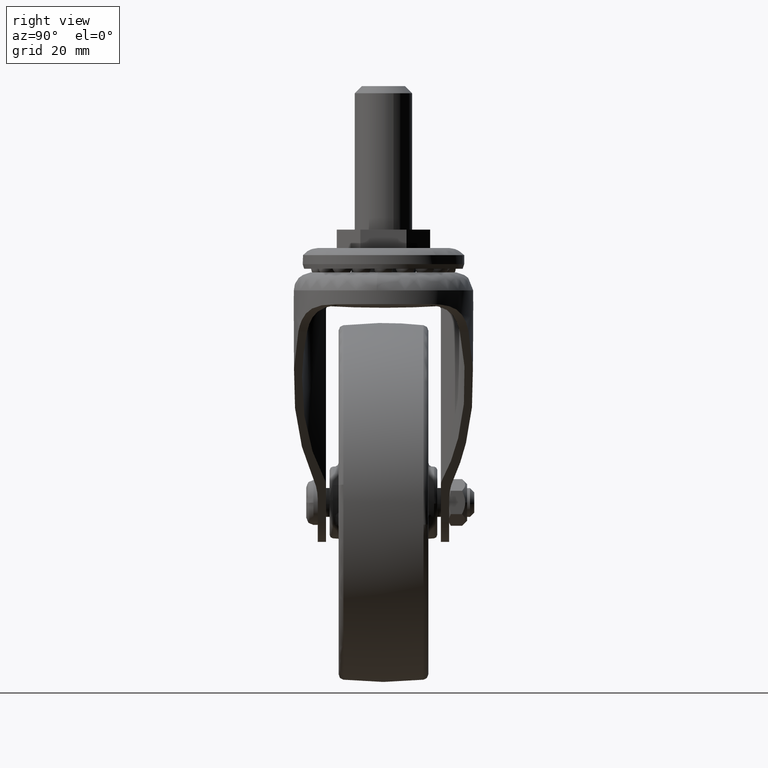
[diagram: clean part render]
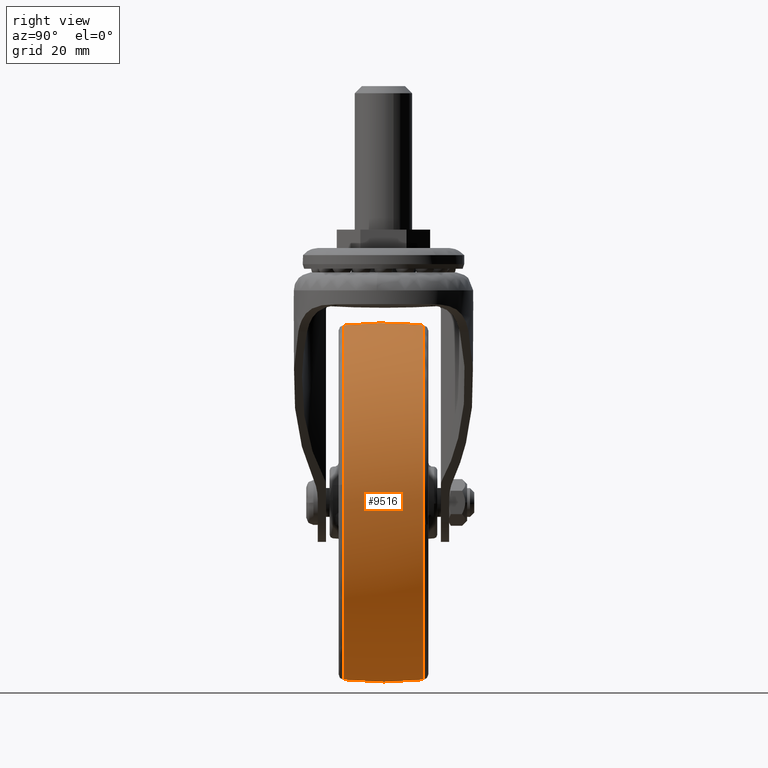
[diagram: same view with one face highlighted and labeled with its STEP entity id]
A machine part, right view. The second image highlights one B-rep face of the part: STEP entity #9516.
In plain terms, the highlighted face is a freeform B-spline surface patch.
Its self-contained STEP definition (entity closure, byte-faithful):
#8456=CARTESIAN_POINT('',(13.453441770170880,-11.167512577570230,-47.506233974520903));
#8457=VERTEX_POINT('',#8456);
#8471=CARTESIAN_POINT('',(49.125185510513532,-11.167506534377891,4.955323121741722));
#8472=VERTEX_POINT('',#8471);
#8473=CARTESIAN_POINT('',(13.453441770170881,-11.167512577570232,-47.506233974520889));
#8474=CARTESIAN_POINT('',(49.374476883661409,-11.167511493247053,-37.333645757907881));
#8475=CARTESIAN_POINT('',(49.374476883661387,-11.167507169380171,0.000016642621604));
#8476=CARTESIAN_POINT('',(49.374476883661394,-11.167506881699939,2.483940552892697));
#8477=CARTESIAN_POINT('',(49.125185510513532,-11.167506534377893,4.955323121741723));
#8485=(BOUNDED_CURVE()B_SPLINE_CURVE(2,(#8473,#8474,#8475,#8476,#8477),.UNSPECIFIED.,.F.,.U.)B_SPLINE_CURVE_WITH_KNOTS((3,2,3),(0.046426116434851,0.250000000000000,0.267423438658967),.UNSPECIFIED.)CURVE()GEOMETRIC_REPRESENTATION_ITEM()RATIONAL_B_SPLINE_CURVE((0.911418360696370,0.761498359904994,1.0,0.979587171873506,0.962019637016756))REPRESENTATION_ITEM(''));
#8486=EDGE_CURVE('',#8457,#8472,#8485,.T.);
#8585=CARTESIAN_POINT('',(0.0,-11.167501450984091,49.374494168904697));
#8586=VERTEX_POINT('',#8585);
#8587=CARTESIAN_POINT('',(49.125185510513532,-11.167506534377891,4.955323121741722));
#8588=CARTESIAN_POINT('',(44.644580076545218,-11.167501450984096,49.374494168904711));
#8589=CARTESIAN_POINT('',(0.0,-11.167501450984091,49.374494168904697));
#8597=(BOUNDED_CURVE()B_SPLINE_CURVE(2,(#8587,#8588,#8589),.UNSPECIFIED.,.F.,.U.)B_SPLINE_CURVE_WITH_KNOTS((3,3),(0.267423438658967,0.500000000000000),.UNSPECIFIED.)CURVE()GEOMETRIC_REPRESENTATION_ITEM()RATIONAL_B_SPLINE_CURVE((0.962019637016756,0.727519609313041,1.0))REPRESENTATION_ITEM(''));
#8598=EDGE_CURVE('',#8472,#8586,#8597,.T.);
#8600=CARTESIAN_POINT('',(-49.044247251732713,-11.167514821191080,5.700959570039594));
#8601=VERTEX_POINT('',#8600);
#8615=CARTESIAN_POINT('',(0.0,-11.167512887776240,-49.374460883661492));
#8616=VERTEX_POINT('',#8615);
#8617=CARTESIAN_POINT('',(-49.044247251732713,-11.167514821191080,5.700959570039594));
#8618=CARTESIAN_POINT('',(-49.374476673389537,-11.167514771326257,2.860052107993396));
#8619=CARTESIAN_POINT('',(-49.374476679640807,-11.167514715329339,0.000015976284381));
#8620=CARTESIAN_POINT('',(-49.374476787560099,-11.167513748621921,-49.374460894832396));
#8621=CARTESIAN_POINT('',(0.0,-11.167512887776240,-49.374460883661492));
#8629=(BOUNDED_CURVE()B_SPLINE_CURVE(2,(#8617,#8618,#8619,#8620,#8621),.UNSPECIFIED.,.F.,.U.)B_SPLINE_CURVE_WITH_KNOTS((3,2,3),(0.730000145986059,0.750000000000000,1.0),.UNSPECIFIED.)CURVE()GEOMETRIC_REPRESENTATION_ITEM()RATIONAL_B_SPLINE_CURVE((0.956886405526814,0.976568713528230,1.0,0.707106781186548,1.0))REPRESENTATION_ITEM(''));
#8630=EDGE_CURVE('',#8601,#8616,#8629,.T.);
#8632=CARTESIAN_POINT('',(0.0,-11.167512887776240,-49.374460883661492));
#8633=CARTESIAN_POINT('',(6.856437568477045,-11.167512887776239,-49.374460883661492));
#8634=CARTESIAN_POINT('',(13.453441770170878,-11.167512577570230,-47.506233974520896));
#8642=(BOUNDED_CURVE()B_SPLINE_CURVE(2,(#8632,#8633,#8634),.UNSPECIFIED.,.F.,.U.)B_SPLINE_CURVE_WITH_KNOTS((3,3),(0.0,0.046426116434851),.UNSPECIFIED.)CURVE()GEOMETRIC_REPRESENTATION_ITEM()RATIONAL_B_SPLINE_CURVE((1.0,0.945608421281553,0.911418360696371))REPRESENTATION_ITEM(''));
#8643=EDGE_CURVE('',#8616,#8457,#8642,.T.);
#8672=CARTESIAN_POINT('',(48.985143232747767,11.167500819042701,-6.188246697697730));
#8673=VERTEX_POINT('',#8672);
#8674=CARTESIAN_POINT('',(0.0,11.167485628169199,49.374495070906320));
#8675=VERTEX_POINT('',#8674);
#8676=CARTESIAN_POINT('',(48.985143232747767,11.167500819042704,-6.188246697697730));
#8677=CARTESIAN_POINT('',(49.374475177890098,11.167499895635391,-3.106361700510835));
#8678=CARTESIAN_POINT('',(49.374475177890098,11.167499051133809,0.000017946508065));
#8679=CARTESIAN_POINT('',(49.374475177890091,11.167485628169201,49.374495070906306));
#8680=CARTESIAN_POINT('',(0.0,11.167485628169199,49.374495070906320));
#8688=(BOUNDED_CURVE()B_SPLINE_CURVE(2,(#8676,#8677,#8678,#8679,#8680),.UNSPECIFIED.,.F.,.U.)B_SPLINE_CURVE_WITH_KNOTS((3,2,3),(0.228321250714427,0.250000000000000,0.500000000000000),.UNSPECIFIED.)CURVE()GEOMETRIC_REPRESENTATION_ITEM()RATIONAL_B_SPLINE_CURVE((0.953608346422326,0.974601765367595,1.0,0.707106781186547,1.0))REPRESENTATION_ITEM(''));
#8689=EDGE_CURVE('',#8673,#8675,#8688,.T.);
#8792=CARTESIAN_POINT('',(0.0,11.167512474098420,-49.374459177890202));
#8793=VERTEX_POINT('',#8792);
#8794=CARTESIAN_POINT('',(0.0,11.167512474098420,-49.374459177890202));
#8795=CARTESIAN_POINT('',(43.529453803987089,11.167512474098420,-49.374459177890195));
#8796=CARTESIAN_POINT('',(48.985143232747774,11.167500819042704,-6.188246697697731));
#8804=(BOUNDED_CURVE()B_SPLINE_CURVE(2,(#8794,#8795,#8796),.UNSPECIFIED.,.F.,.U.)B_SPLINE_CURVE_WITH_KNOTS((3,3),(0.0,0.228321250714427),.UNSPECIFIED.)CURVE()GEOMETRIC_REPRESENTATION_ITEM()RATIONAL_B_SPLINE_CURVE((1.0,0.732505015818953,0.953608346422326))REPRESENTATION_ITEM(''));
#8805=EDGE_CURVE('',#8793,#8673,#8804,.T.);
#8807=CARTESIAN_POINT('',(-49.044248125281300,11.167499099310250,5.700959768865777));
#8808=VERTEX_POINT('',#8807);
#8809=CARTESIAN_POINT('',(-49.044248125281300,11.167499099310259,5.700959768865777));
#8810=CARTESIAN_POINT('',(-49.374477480170178,11.167499444260280,2.860052349725892));
#8811=CARTESIAN_POINT('',(-49.374477411724662,11.167499831630240,0.000016259662657));
#8812=CARTESIAN_POINT('',(-49.374476230109494,11.167506519024325,-49.374459055579351));
#8813=CARTESIAN_POINT('',(0.0,11.167512474098420,-49.374459177890202));
#8821=(BOUNDED_CURVE()B_SPLINE_CURVE(2,(#8809,#8810,#8811,#8812,#8813),.UNSPECIFIED.,.F.,.U.)B_SPLINE_CURVE_WITH_KNOTS((3,2,3),(0.730000145654996,0.750000000000000,1.0),.UNSPECIFIED.)CURVE()GEOMETRIC_REPRESENTATION_ITEM()RATIONAL_B_SPLINE_CURVE((0.956886404875201,0.976568713140366,1.0,0.707106781186547,1.0))REPRESENTATION_ITEM(''));
#8822=EDGE_CURVE('',#8808,#8793,#8821,.T.);
#9424=CARTESIAN_POINT('',(-48.912141797698162,-12.293386680871293,5.685645083880570));
#9425=CARTESIAN_POINT('',(-49.665582081654208,-6.170093837611956,5.773226241318850));
#9426=CARTESIAN_POINT('',(-49.665582081654193,0.0,5.773226241318849));
#9427=CARTESIAN_POINT('',(-49.665582081654186,6.170090758022482,5.773226241318846));
#9428=CARTESIAN_POINT('',(-48.912142546953007,12.293380591592436,5.685645170975202));
#9429=CARTESIAN_POINT('',(-49.241486505969760,-12.293386680871292,2.852369322545358));
#9430=CARTESIAN_POINT('',(-49.999999999999993,-6.170093837611954,2.896306836182978));
#9431=CARTESIAN_POINT('',(-50.0,0.0,2.896306836182978));
#9432=CARTESIAN_POINT('',(-50.0,6.170090758022481,2.896306836182979));
#9433=CARTESIAN_POINT('',(-49.241487260269615,12.293380591592436,2.852369366238793));
#9434=CARTESIAN_POINT('',(-49.241486505969753,-12.293386680871301,0.000015999999901));
#9435=CARTESIAN_POINT('',(-50.000000000000007,-6.170093837611955,0.000015999999901));
#9436=CARTESIAN_POINT('',(-50.0,0.0,0.000015999999901));
#9437=CARTESIAN_POINT('',(-50.0,6.170090758022482,0.000015999999901));
#9438=CARTESIAN_POINT('',(-49.241487260269629,12.293380591592440,0.000015999999901));
#9439=CARTESIAN_POINT('',(-49.241486505969753,-12.293386680871295,-49.241470505969865));
#9440=CARTESIAN_POINT('',(-49.999999999999993,-6.170093837611955,-49.999984000000111));
#9441=CARTESIAN_POINT('',(-50.0,0.0,-49.999984000000111));
#9442=CARTESIAN_POINT('',(-50.000000000000014,6.170090758022482,-49.999984000000111));
#9443=CARTESIAN_POINT('',(-49.241487260269629,12.293380591592436,-49.241471260269734));
#9444=CARTESIAN_POINT('',(0.0,-12.293386680871301,-49.241470505969872));
#9445=CARTESIAN_POINT('',(0.0,-6.170093837611955,-49.999984000000119));
#9446=CARTESIAN_POINT('',(0.0,0.0,-49.999984000000097));
#9447=CARTESIAN_POINT('',(0.0,6.170090758022482,-49.999984000000111));
#9448=CARTESIAN_POINT('',(0.0,12.293380591592440,-49.241471260269726));
#9449=CARTESIAN_POINT('',(49.241486505969753,-12.293386680871295,-49.241470505969865));
#9450=CARTESIAN_POINT('',(49.999999999999993,-6.170093837611955,-49.999984000000111));
#9451=CARTESIAN_POINT('',(50.0,0.0,-49.999984000000111));
#9452=CARTESIAN_POINT('',(50.000000000000014,6.170090758022482,-49.999984000000111));
#9453=CARTESIAN_POINT('',(49.241487260269629,12.293380591592436,-49.241471260269734));
#9454=CARTESIAN_POINT('',(49.241486505969753,-12.293386680871301,0.000015999999901));
#9455=CARTESIAN_POINT('',(50.000000000000007,-6.170093837611955,0.000015999999901));
#9456=CARTESIAN_POINT('',(50.0,0.0,0.000015999999901));
#9457=CARTESIAN_POINT('',(50.0,6.170090758022482,0.000015999999901));
#9458=CARTESIAN_POINT('',(49.241487260269629,12.293380591592440,0.000015999999901));
#9459=CARTESIAN_POINT('',(49.241486505969753,-12.293386680871295,49.241502505969663));
#9460=CARTESIAN_POINT('',(49.999999999999993,-6.170093837611955,50.000015999999910));
#9461=CARTESIAN_POINT('',(50.0,0.0,50.000015999999910));
#9462=CARTESIAN_POINT('',(50.000000000000014,6.170090758022482,50.000015999999910));
#9463=CARTESIAN_POINT('',(49.241487260269629,12.293380591592436,49.241503260269532));
#9464=CARTESIAN_POINT('',(0.0,-12.293386680871301,49.241502505969656));
#9465=CARTESIAN_POINT('',(0.0,-6.170093837611955,50.000015999999903));
#9466=CARTESIAN_POINT('',(0.0,0.0,50.000015999999903));
#9467=CARTESIAN_POINT('',(0.0,6.170090758022482,50.000015999999903));
#9468=CARTESIAN_POINT('',(0.0,12.293380591592440,49.241503260269539));
#9476=(BOUNDED_SURFACE()B_SPLINE_SURFACE(2,2,((#9424,#9429,#9434,#9439,#9444,#9449,#9454,#9459,#9464),(#9425,#9430,#9435,#9440,#9445,#9450,#9455,#9460,#9465),(#9426,#9431,#9436,#9441,#9446,#9451,#9456,#9461,#9466),(#9427,#9432,#9437,#9442,#9447,#9452,#9457,#9462,#9467),(#9428,#9433,#9438,#9443,#9448,#9453,#9458,#9463,#9468)),.UNSPECIFIED.,.F.,.F.,.U.)B_SPLINE_SURFACE_WITH_KNOTS((3,2,3),(3,2,2,2,3),(0.0,12.496629759044810,24.993253382269739),(0.0,6.627415615382596,89.470128090001623,172.312840564620590,255.155553039239690),.UNSPECIFIED.)GEOMETRIC_REPRESENTATION_ITEM()RATIONAL_B_SPLINE_SURFACE(((0.929539305940074,0.948659223590073,0.971421029411789,0.686898397284292,0.971421029411789,0.686898397284292,0.971421029411789,0.686898397284292,0.971421029411789),(0.941323491873215,0.960685801279188,0.983736168703693,0.695606515788855,0.983736168703693,0.695606515788855,0.983736168703693,0.695606515788855,0.983736168703693),(0.956886126402807,0.976568547383107,1.0,0.707106781186548,1.0,0.707106781186548,1.0,0.707106781186548,1.0),(0.941323499514438,0.960685809077585,0.983736176689201,0.695606521435462,0.983736176689201,0.695606521435462,0.983736176689201,0.695606521435462,0.983736176689201),(0.929539317512098,0.948659235400124,0.971421041505206,0.686898405835630,0.971421041505206,0.686898405835630,0.971421041505206,0.686898405835630,0.971421041505206)))REPRESENTATION_ITEM('')SURFACE());
#9477=ORIENTED_EDGE('',*,*,#8630,.F.);
#9478=CARTESIAN_POINT('',(-49.044247251732720,-11.167514821191075,5.700959570039594));
#9479=CARTESIAN_POINT('',(-49.665586642380653,-5.601276079178630,5.773185138705915));
#9480=CARTESIAN_POINT('',(-49.665586424053942,-0.000000048614962,5.773185137724423));
#9481=CARTESIAN_POINT('',(-49.665586205727536,5.601268095782933,5.773185136742934));
#9482=CARTESIAN_POINT('',(-49.044248125281307,11.167499099310255,5.700959768865777));
#9490=(BOUNDED_CURVE()B_SPLINE_CURVE(2,(#9478,#9479,#9480,#9481,#9482),.UNSPECIFIED.,.F.,.U.)B_SPLINE_CURVE_WITH_KNOTS((3,2,3),(0.444815480394185,0.500000000000000,0.555184443059112),.UNSPECIFIED.)CURVE()GEOMETRIC_REPRESENTATION_ITEM()RATIONAL_B_SPLINE_CURVE((0.931711096272141,0.942736980498662,0.956886118190660,0.942737000124996,0.931711126860258))REPRESENTATION_ITEM(''));
#9491=EDGE_CURVE('',#8601,#8808,#9490,.T.);
#9492=ORIENTED_EDGE('',*,*,#9491,.T.);
#9493=ORIENTED_EDGE('',*,*,#8822,.T.);
#9494=ORIENTED_EDGE('',*,*,#8805,.T.);
#9495=ORIENTED_EDGE('',*,*,#8689,.T.);
#9496=CARTESIAN_POINT('',(0.0,-11.167501450984100,49.374494168904697));
#9497=CARTESIAN_POINT('',(0.0,-5.601269306657856,50.000015999999896));
#9498=CARTESIAN_POINT('',(0.0,0.0,50.000015999999903));
#9499=CARTESIAN_POINT('',(0.0,5.601261369548253,50.000015999999896));
#9500=CARTESIAN_POINT('',(0.0,11.167485628169198,49.374495070906320));
#9508=(BOUNDED_CURVE()B_SPLINE_CURVE(2,(#9496,#9497,#9498,#9499,#9500),.UNSPECIFIED.,.F.,.U.)B_SPLINE_CURVE_WITH_KNOTS((3,2,3),(0.444815545896164,0.500000000000000,0.555184377062646),.UNSPECIFIED.)CURVE()GEOMETRIC_REPRESENTATION_ITEM()RATIONAL_B_SPLINE_CURVE((0.973690708575139,0.985213370088125,1.0,0.985213390731249,0.973690740747958))REPRESENTATION_ITEM(''));
#9509=EDGE_CURVE('',#8586,#8675,#9508,.T.);
#9510=ORIENTED_EDGE('',*,*,#9509,.F.);
#9511=ORIENTED_EDGE('',*,*,#8598,.F.);
#9512=ORIENTED_EDGE('',*,*,#8486,.F.);
#9513=ORIENTED_EDGE('',*,*,#8643,.F.);
#9514=EDGE_LOOP('',(#9477,#9492,#9493,#9494,#9495,#9510,#9511,#9512,#9513));
#9515=FACE_OUTER_BOUND('',#9514,.T.);
#9516=ADVANCED_FACE('',(#9515),#9476,.T.);